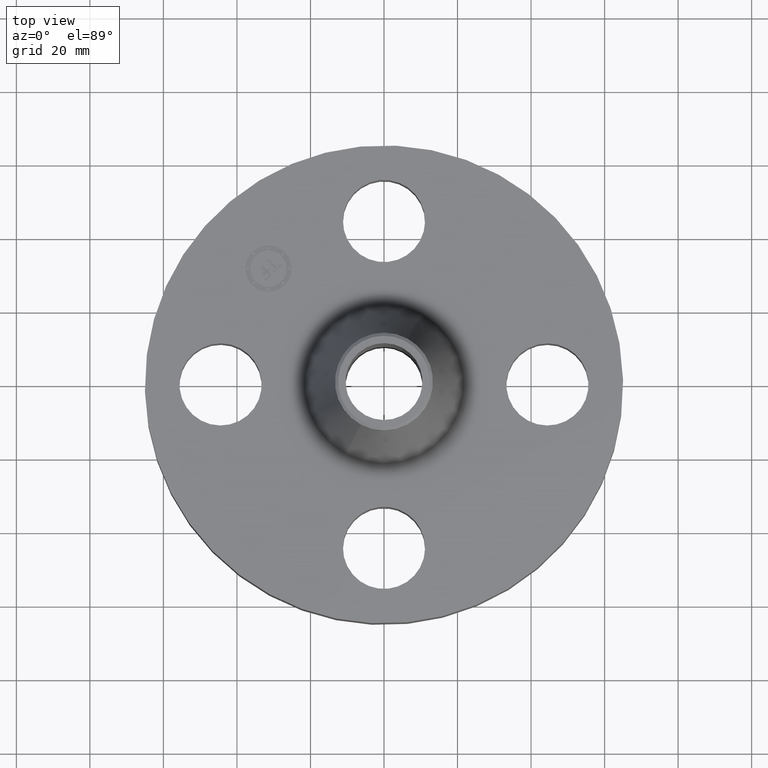
[diagram: clean part render]
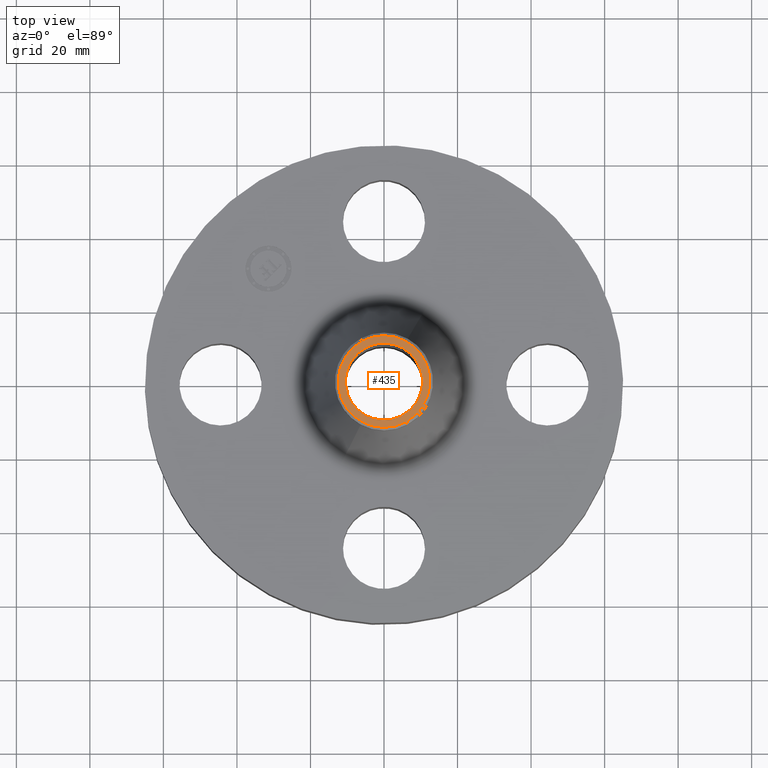
[diagram: same view with one face highlighted and labeled with its STEP entity id]
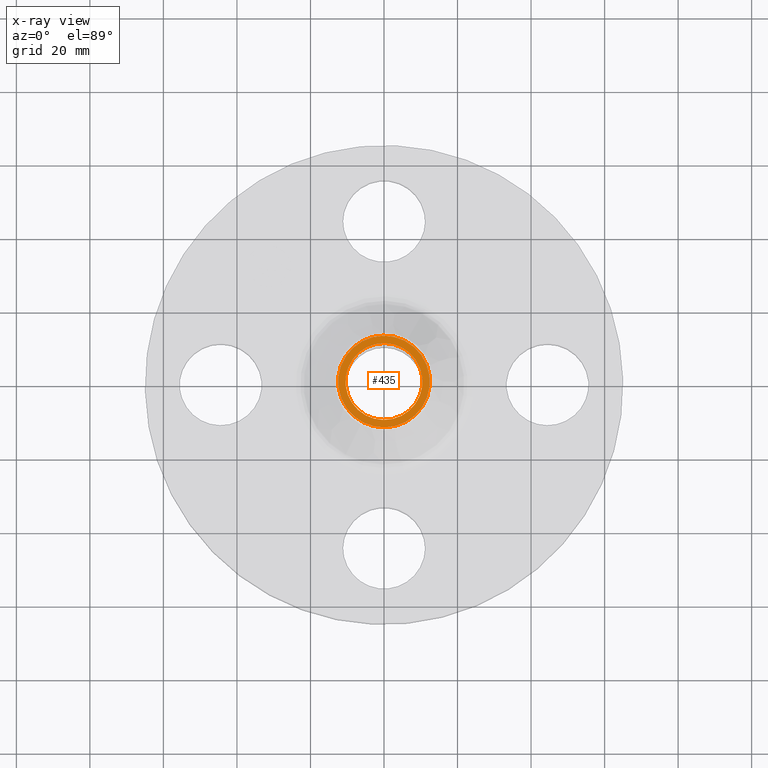
[diagram: x-ray of the same camera — body ghosted, the highlighted face saturated]
A machine part, top view. The second image highlights one B-rep face of the part: STEP entity #435.
The next image is the same camera in x-ray: the body ghosted, the highlighted face saturated — about 0% of this face is hidden behind the body in this view.
In plain terms, the highlighted planar face has unit normal (0, 0, -1).
Its self-contained STEP definition (entity closure, byte-faithful):
#385=AXIS2_PLACEMENT_3D('Circle Axis2P3D',#383,#384,$) ;
#406=AXIS2_PLACEMENT_3D('Plane Axis2P3D',#403,#404,#405) ;
#410=AXIS2_PLACEMENT_3D('Circle Axis2P3D',#408,#409,$) ;
#419=AXIS2_PLACEMENT_3D('Circle Axis2P3D',#417,#418,$) ;
#428=AXIS2_PLACEMENT_3D('Circle Axis2P3D',#426,#427,$) ;
#380=CARTESIAN_POINT('Vertex',(0.235273364315,-0.430665004625,2.75000000001)) ;
#383=CARTESIAN_POINT('Axis2P3D Location',(0.,0.,2.75000000001)) ;
#387=CARTESIAN_POINT('Vertex',(-0.235273364315,0.430665004625,2.75000000001)) ;
#403=CARTESIAN_POINT('Axis2P3D Location',(0.,0.525000000002,2.75000000001)) ;
#408=CARTESIAN_POINT('Axis2P3D Location',(0.,0.,2.75000000001)) ;
#417=CARTESIAN_POINT('Axis2P3D Location',(0.,0.,2.75000000001)) ;
#421=CARTESIAN_POINT('Vertex',(-0.197523321906,-0.3615640155,2.75000000001)) ;
#423=CARTESIAN_POINT('Vertex',(0.197523321906,0.3615640155,2.75000000001)) ;
#426=CARTESIAN_POINT('Axis2P3D Location',(0.,0.,2.75000000001)) ;
#384=DIRECTION('Axis2P3D Direction',(0.,0.,-0.0393700787402)) ;
#404=DIRECTION('Axis2P3D Direction',(0.,0.,-0.0393700787402)) ;
#405=DIRECTION('Axis2P3D XDirection',(0.0393700787402,0.,0.)) ;
#409=DIRECTION('Axis2P3D Direction',(0.,0.,-0.0393700787402)) ;
#418=DIRECTION('Axis2P3D Direction',(0.,0.,-0.0393700787402)) ;
#427=DIRECTION('Axis2P3D Direction',(0.,0.,-0.0393700787402)) ;
#414=ORIENTED_EDGE('',*,*,#412,.T.) ;
#415=ORIENTED_EDGE('',*,*,#389,.T.) ;
#432=ORIENTED_EDGE('',*,*,#425,.T.) ;
#433=ORIENTED_EDGE('',*,*,#430,.T.) ;
#434=FACE_BOUND('',#431,.T.) ;
#435=ADVANCED_FACE('PartBody',(#416,#434),#407,.F.) ;
#386=CIRCLE('generated circle',#385,0.490740157482) ;
#411=CIRCLE('generated circle',#410,0.490740157482) ;
#420=CIRCLE('generated circle',#419,0.412000000002) ;
#429=CIRCLE('generated circle',#428,0.412000000002) ;
#389=EDGE_CURVE('',#388,#381,#386,.F.) ;
#412=EDGE_CURVE('',#381,#388,#411,.F.) ;
#425=EDGE_CURVE('',#422,#424,#420,.T.) ;
#430=EDGE_CURVE('',#424,#422,#429,.T.) ;
#413=EDGE_LOOP('',(#414,#415)) ;
#431=EDGE_LOOP('',(#432,#433)) ;
#416=FACE_OUTER_BOUND('',#413,.T.) ;
#407=PLANE('',#406) ;
#381=VERTEX_POINT('',#380) ;
#388=VERTEX_POINT('',#387) ;
#422=VERTEX_POINT('',#421) ;
#424=VERTEX_POINT('',#423) ;